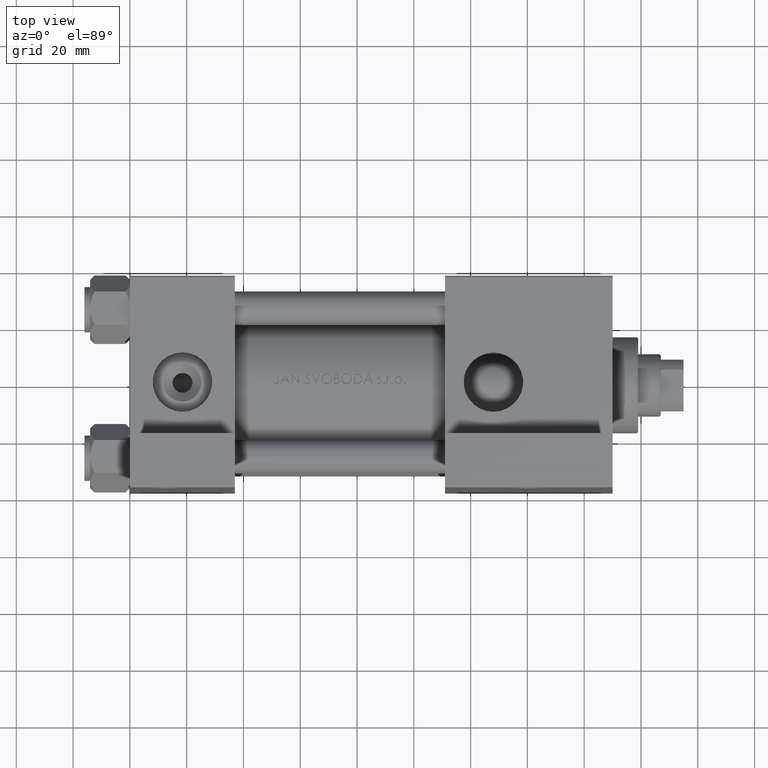
[diagram: clean part render]
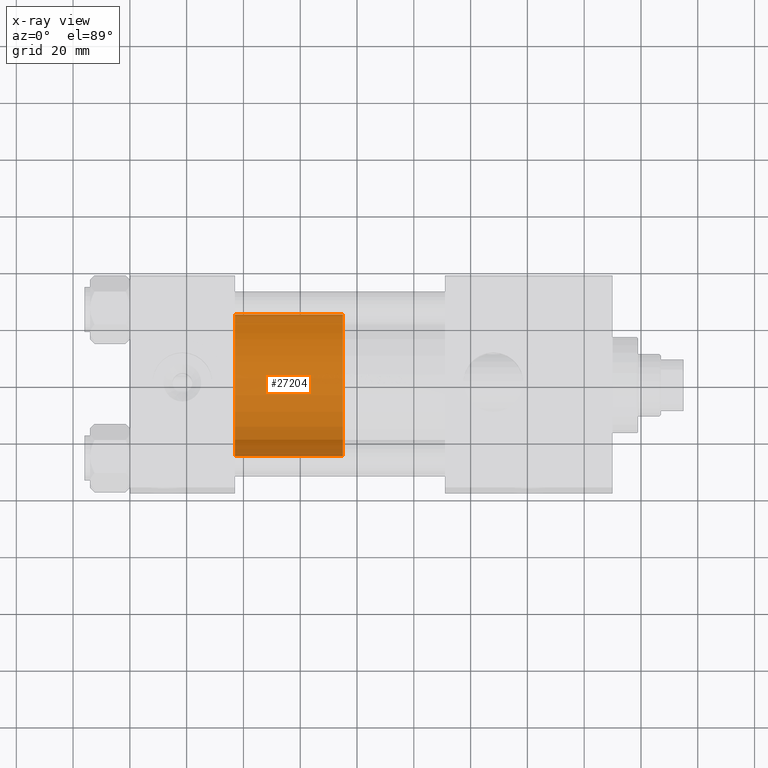
[diagram: x-ray — body ghosted, one internal face saturated and labeled with its STEP entity id]
A machine part, top view, then the same camera in x-ray: the body is ghosted and one INTERNAL B-rep face — a face not visible from any outside direction — is saturated and labeled: STEP entity #27204.
In plain terms, the highlighted cylindrical surface (partial cylindrical patch) has radius 25 mm, axis along (-1, 0, 0).
Its self-contained STEP definition (entity closure, byte-faithful):
#285 = CARTESIAN_POINT ( 'NONE',  ( 25.00000000000000000, 3.061616997868383043E-15, 38.00000000000000000 ) ) ;
#1054 = VECTOR ( 'NONE', #41292, 1000.000000000000000 ) ;
#5967 = DIRECTION ( 'NONE',  ( 1.000000000000000000, 0.000000000000000000, 0.000000000000000000 ) ) ;
#6210 = CARTESIAN_POINT ( 'NONE',  ( 0.000000000000000000, 0.000000000000000000, 38.00000000000000000 ) ) ;
#6649 = EDGE_LOOP ( 'NONE', ( #47293, #33528, #24179, #22511 ) ) ;
#6677 = CARTESIAN_POINT ( 'NONE',  ( -25.00000000000000000, 0.000000000000000000, 0.000000000000000000 ) ) ;
#7706 = EDGE_CURVE ( 'NONE', #10975, #41321, #25625, .T. ) ;
#7927 = CIRCLE ( 'NONE', #33380, 25.00000000000000000 ) ;
#8634 = CARTESIAN_POINT ( 'NONE',  ( -25.00000000000000000, 0.000000000000000000, 38.00000000000000000 ) ) ;
#10209 = VERTEX_POINT ( 'NONE', #32333 ) ;
#10495 = EDGE_CURVE ( 'NONE', #41321, #38339, #46742, .T. ) ;
#10975 = VERTEX_POINT ( 'NONE', #285 ) ;
#11899 = CARTESIAN_POINT ( 'NONE',  ( 25.00000000000000000, 3.061616997868383043E-15, 38.00000000000000000 ) ) ;
#17392 = AXIS2_PLACEMENT_3D ( 'NONE', #28507, #25497, #40679 ) ;
#17654 = DIRECTION ( 'NONE',  ( 0.000000000000000000, 0.000000000000000000, 1.000000000000000000 ) ) ;
#20025 = CARTESIAN_POINT ( 'NONE',  ( -25.00000000000000000, 0.000000000000000000, 38.00000000000000000 ) ) ;
#22511 = ORIENTED_EDGE ( 'NONE', *, *, #10495, .F. ) ;
#24179 = ORIENTED_EDGE ( 'NONE', *, *, #30475, .T. ) ;
#25497 = DIRECTION ( 'NONE',  ( -0.000000000000000000, -0.000000000000000000, -1.000000000000000000 ) ) ;
#25625 = CIRCLE ( 'NONE', #39154, 25.00000000000000000 ) ;
#27204 = ADVANCED_FACE ( 'NONE', ( #32721 ), #36951, .T. ) ;
#28507 = CARTESIAN_POINT ( 'NONE',  ( 0.000000000000000000, 0.000000000000000000, 38.00000000000000000 ) ) ;
#30283 = CARTESIAN_POINT ( 'NONE',  ( 0.000000000000000000, 0.000000000000000000, 0.000000000000000000 ) ) ;
#30475 = EDGE_CURVE ( 'NONE', #10209, #38339, #7927, .T. ) ;
#31029 = DIRECTION ( 'NONE',  ( 1.000000000000000000, 0.000000000000000000, 0.000000000000000000 ) ) ;
#31294 = VECTOR ( 'NONE', #35530, 1000.000000000000000 ) ;
#31648 = EDGE_CURVE ( 'NONE', #10975, #10209, #45033, .T. ) ;
#32333 = CARTESIAN_POINT ( 'NONE',  ( 25.00000000000000000, 3.061616997868383043E-15, 0.000000000000000000 ) ) ;
#32721 = FACE_OUTER_BOUND ( 'NONE', #6649, .T. ) ;
#33380 = AXIS2_PLACEMENT_3D ( 'NONE', #30283, #41723, #31029 ) ;
#33528 = ORIENTED_EDGE ( 'NONE', *, *, #31648, .T. ) ;
#35530 = DIRECTION ( 'NONE',  ( -0.000000000000000000, -0.000000000000000000, -1.000000000000000000 ) ) ;
#36951 = CYLINDRICAL_SURFACE ( 'NONE', #17392, 25.00000000000000000 ) ;
#38339 = VERTEX_POINT ( 'NONE', #6677 ) ;
#39154 = AXIS2_PLACEMENT_3D ( 'NONE', #6210, #17654, #5967 ) ;
#40679 = DIRECTION ( 'NONE',  ( -1.000000000000000000, 0.000000000000000000, 0.000000000000000000 ) ) ;
#41292 = DIRECTION ( 'NONE',  ( -0.000000000000000000, -0.000000000000000000, -1.000000000000000000 ) ) ;
#41321 = VERTEX_POINT ( 'NONE', #20025 ) ;
#41723 = DIRECTION ( 'NONE',  ( 0.000000000000000000, 0.000000000000000000, 1.000000000000000000 ) ) ;
#45033 = LINE ( 'NONE', #11899, #1054 ) ;
#46742 = LINE ( 'NONE', #8634, #31294 ) ;
#47293 = ORIENTED_EDGE ( 'NONE', *, *, #7706, .F. ) ;